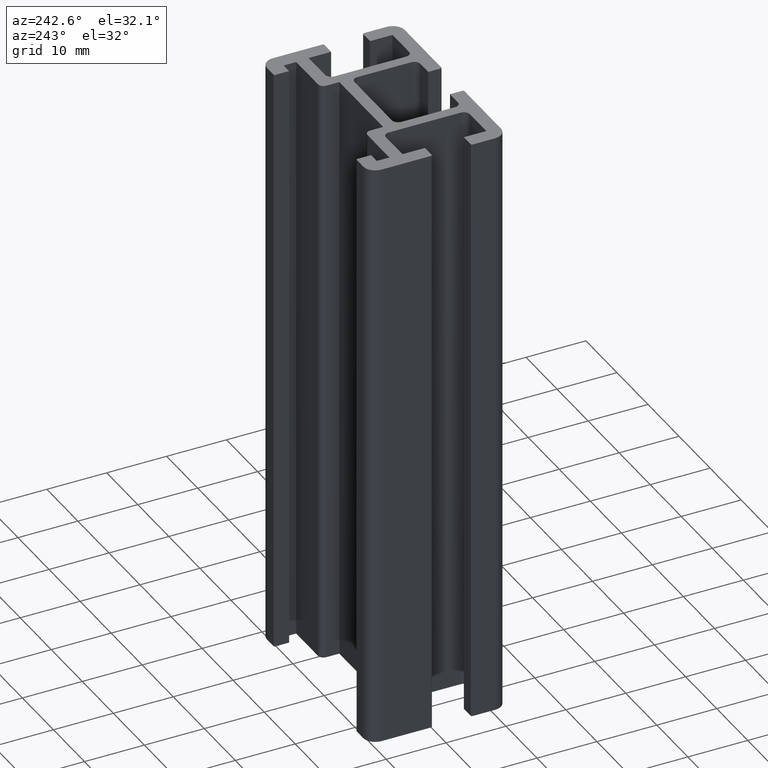
[diagram: clean part render]
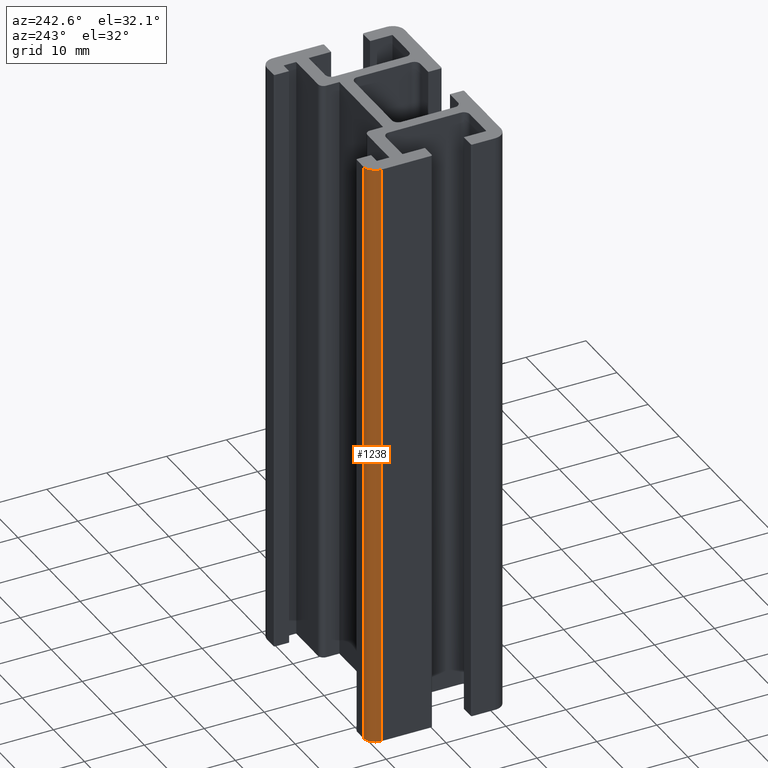
[diagram: same view with one face highlighted and labeled with its STEP entity id]
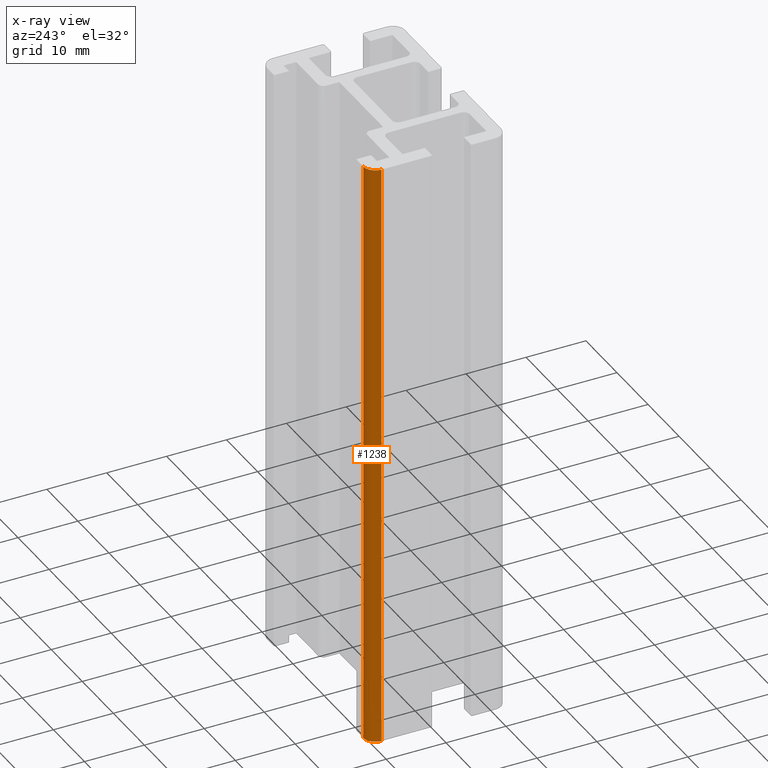
[diagram: x-ray of the same camera — body ghosted, the highlighted face saturated]
A machine part, auxiliary view. The second image highlights one B-rep face of the part: STEP entity #1238.
The next image is the same camera in x-ray: the body ghosted, the highlighted face saturated — about 0% of this face is hidden behind the body in this view.
In plain terms, the highlighted cylindrical surface (edge-blend (fillet) strip) has radius 2 mm, axis along (0, 0, 1).
Its self-contained STEP definition (entity closure, byte-faithful):
#78=FACE_OUTER_BOUND('',#142,.T.);
#142=EDGE_LOOP('',(#907,#908,#909,#910));
#232=LINE('',#1880,#374);
#233=LINE('',#1886,#375);
#374=VECTOR('',#1514,100.);
#375=VECTOR('',#1521,100.);
#485=CIRCLE('',#1321,2.);
#486=CIRCLE('',#1322,2.);
#555=VERTEX_POINT('',#1876);
#556=VERTEX_POINT('',#1878);
#557=VERTEX_POINT('',#1882);
#558=VERTEX_POINT('',#1884);
#700=EDGE_CURVE('',#555,#556,#232,.T.);
#701=EDGE_CURVE('',#557,#555,#485,.T.);
#702=EDGE_CURVE('',#558,#556,#486,.T.);
#703=EDGE_CURVE('',#557,#558,#233,.T.);
#907=ORIENTED_EDGE('',*,*,#701,.T.);
#908=ORIENTED_EDGE('',*,*,#700,.T.);
#909=ORIENTED_EDGE('',*,*,#702,.F.);
#910=ORIENTED_EDGE('',*,*,#703,.F.);
#1203=CYLINDRICAL_SURFACE('',#1320,2.);
#1238=ADVANCED_FACE('',(#78),#1203,.T.);
#1320=AXIS2_PLACEMENT_3D('',#1881,#1515,#1516);
#1321=AXIS2_PLACEMENT_3D('',#1883,#1517,#1518);
#1322=AXIS2_PLACEMENT_3D('',#1885,#1519,#1520);
#1514=DIRECTION('',(0.,0.,1.));
#1515=DIRECTION('center_axis',(0.,0.,1.));
#1516=DIRECTION('ref_axis',(0.,1.,0.));
#1517=DIRECTION('center_axis',(0.,0.,1.));
#1518=DIRECTION('ref_axis',(0.,1.,0.));
#1519=DIRECTION('center_axis',(0.,0.,1.));
#1520=DIRECTION('ref_axis',(0.,1.,0.));
#1521=DIRECTION('',(0.,0.,1.));
#1876=CARTESIAN_POINT('',(-17.5,9.49999999999999,0.));
#1878=CARTESIAN_POINT('',(-17.5,9.49999999999999,100.));
#1880=CARTESIAN_POINT('',(-17.5,9.49999999999999,0.));
#1881=CARTESIAN_POINT('Origin',(-15.5,9.49999999999999,0.));
#1882=CARTESIAN_POINT('',(-15.5,11.5,0.));
#1883=CARTESIAN_POINT('Origin',(-15.5,9.49999999999999,0.));
#1884=CARTESIAN_POINT('',(-15.5,11.5,100.));
#1885=CARTESIAN_POINT('Origin',(-15.5,9.49999999999999,100.));
#1886=CARTESIAN_POINT('',(-15.5,11.5,0.));